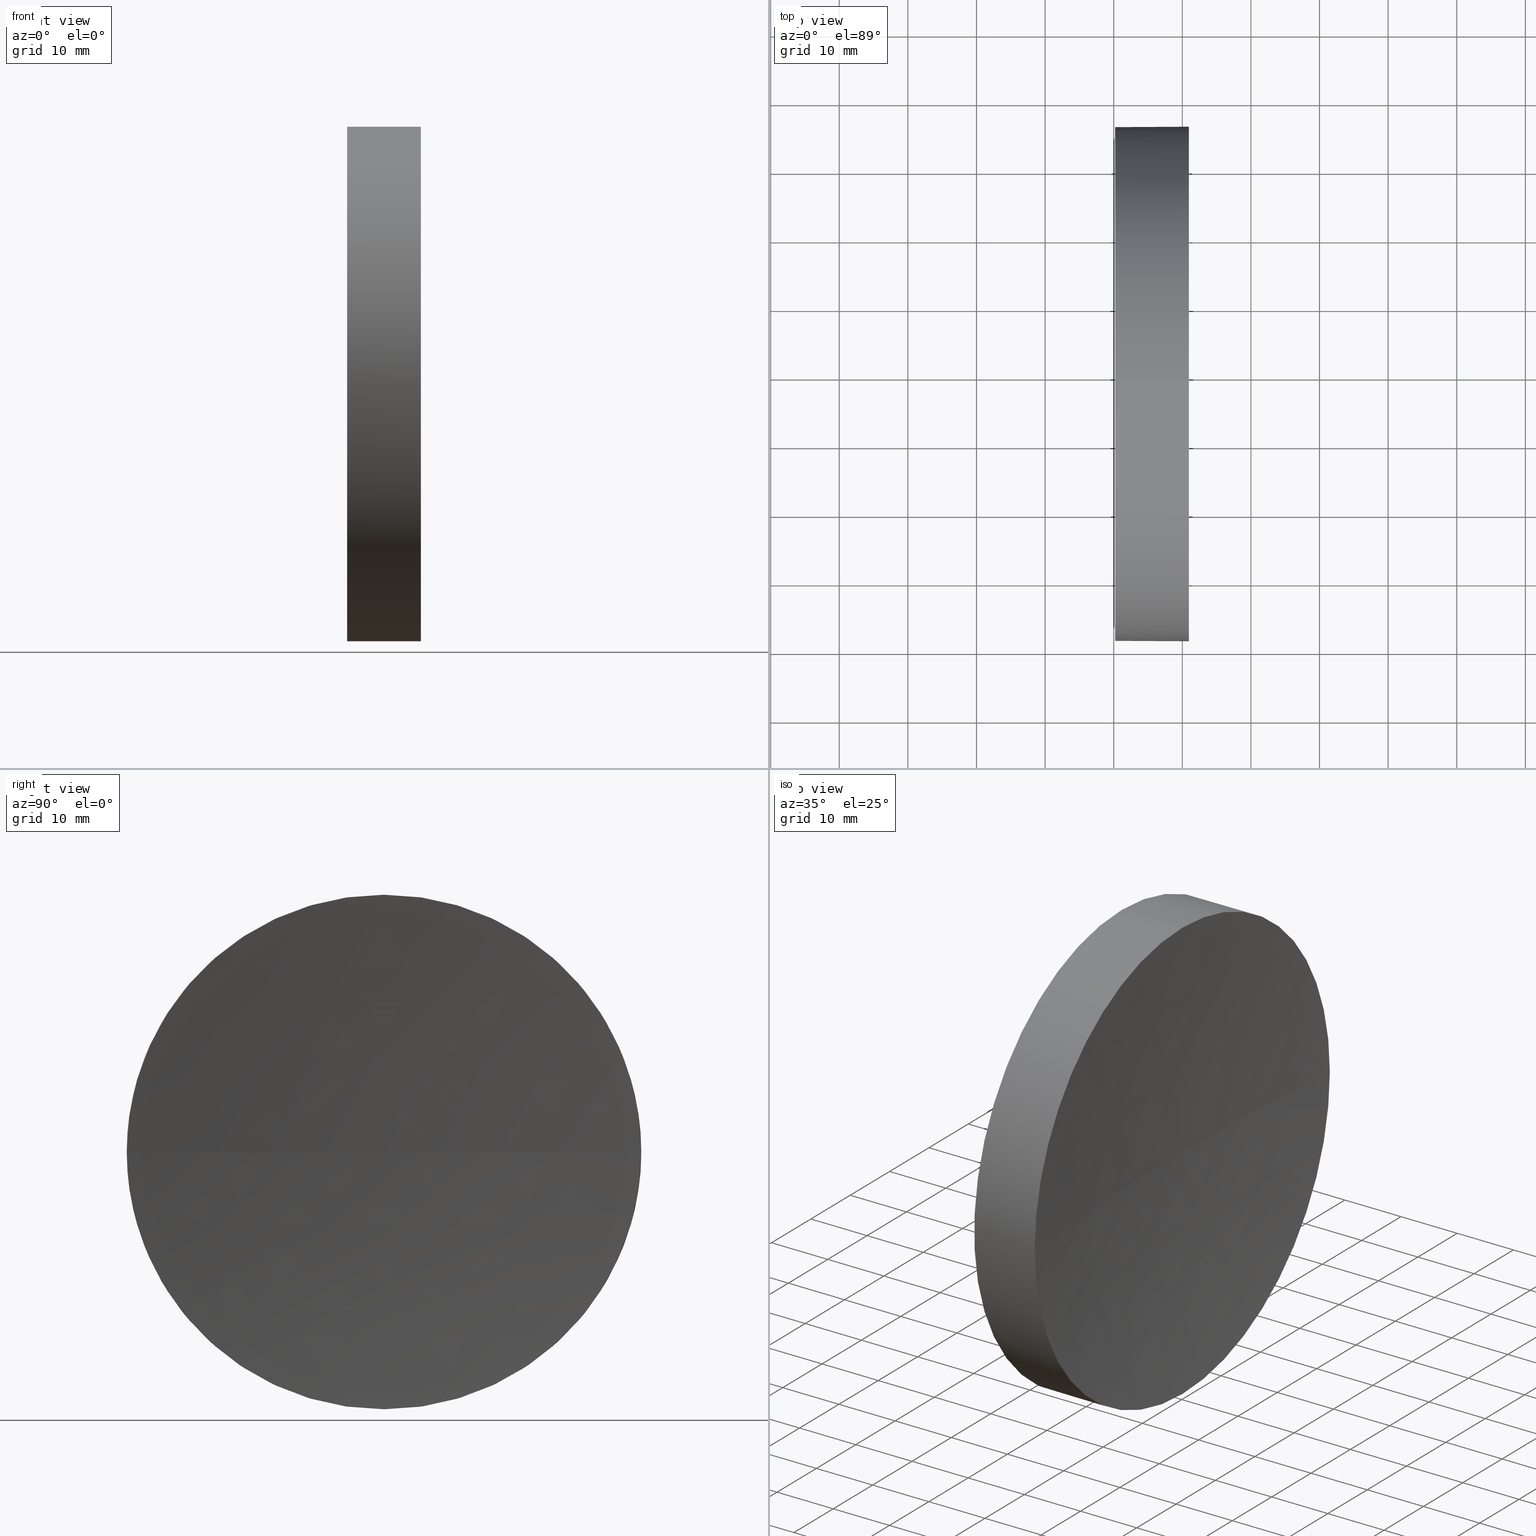
[diagram: canonical four-view strip — front | top / right | iso, engineering-drawing reading convention]
A machine part, canonical four-view strip (front | top / right | iso — engineering-drawing reading convention). The complete STEP part file that produces these views, byte-faithful:
ISO-10303-21;
HEADER;
FILE_DESCRIPTION (( 'STEP AP214' ),
    '1' );
FILE_NAME ('270061.STEP',
    '2019-07-23T08:44:29',
    ( '' ),
    ( '' ),
    'SwSTEP 2.0',
    'SolidWorks 2016',
    '' );
FILE_SCHEMA (( 'AUTOMOTIVE_DESIGN' ));
ENDSEC;

DATA;
#1 =( NAMED_UNIT ( * ) SI_UNIT ( $, .STERADIAN. ) SOLID_ANGLE_UNIT ( ) );
#2 = AXIS2_PLACEMENT_3D ( 'NONE', #132, #103, #11 ) ;
#3 = CIRCLE ( 'NONE', #118, 37.50000000000000700 ) ;
#4 = PRESENTATION_LAYER_ASSIGNMENT (  '', '', ( #39 ) ) ;
#5 = VERTEX_POINT ( 'NONE', #6 ) ;
#6 = CARTESIAN_POINT ( 'NONE',  ( 239.1996119002084500, 138.7560422467451000, 0.0000000000000000000 ) ) ;
#7 = PRODUCT_DEFINITION_SHAPE ( 'NONE', 'NONE',  #174 ) ;
#8 = UNCERTAINTY_MEASURE_WITH_UNIT (LENGTH_MEASURE( 1.000000000000000100E-005 ), #36, 'distance_accuracy_value', 'NONE');
#9 = ORIENTED_EDGE ( 'NONE', *, *, #31, .F. ) ;
#10 = AXIS2_PLACEMENT_3D ( 'NONE', #80, #78, #130 ) ;
#11 = DIRECTION ( 'NONE',  ( 0.0000000000000000000, 0.0000000000000000000, 1.000000000000000000 ) ) ;
#12 = DIRECTION ( 'NONE',  ( 0.0000000000000000000, 0.0000000000000000000, 1.000000000000000000 ) ) ;
#13 = SURFACE_STYLE_USAGE ( .BOTH. , #71 ) ;
#14 = DIRECTION ( 'NONE',  ( 1.000000000000000000, 0.0000000000000000000, 0.0000000000000000000 ) ) ;
#15 = EDGE_CURVE ( 'NONE', #20, #163, #88, .T. ) ;
#16 = UNCERTAINTY_MEASURE_WITH_UNIT (LENGTH_MEASURE( 1.000000000000000100E-005 ), #165, 'distance_accuracy_value', 'NONE');
#17 = AXIS2_PLACEMENT_3D ( 'NONE', #157, #63, #21 ) ;
#18 = CIRCLE ( 'NONE', #172, 37.50000000000000700 ) ;
#19 = SURFACE_STYLE_USAGE ( .BOTH. , #125 ) ;
#20 = VERTEX_POINT ( 'NONE', #37 ) ;
#21 = DIRECTION ( 'NONE',  ( 0.0000000000000000000, 0.0000000000000000000, 1.000000000000000000 ) ) ;
#22 = CARTESIAN_POINT ( 'NONE',  ( 240.9613038483586300, 138.7560422467448700, 37.50000000000000700 ) ) ;
#23 = EDGE_LOOP ( 'NONE', ( #150, #57 ) ) ;
#24 = EDGE_CURVE ( 'NONE', #34, #156, #134, .T. ) ;
#25 = DIRECTION ( 'NONE',  ( 0.0000000000000000000, 0.0000000000000000000, 1.000000000000000000 ) ) ;
#26 = ORIENTED_EDGE ( 'NONE', *, *, #146, .T. ) ;
#27 =( NAMED_UNIT ( * ) SI_UNIT ( $, .STERADIAN. ) SOLID_ANGLE_UNIT ( ) );
#28 =( GEOMETRIC_REPRESENTATION_CONTEXT ( 3 ) GLOBAL_UNCERTAINTY_ASSIGNED_CONTEXT ( ( #8 ) ) GLOBAL_UNIT_ASSIGNED_CONTEXT ( ( #36, #50, #142 ) ) REPRESENTATION_CONTEXT ( 'NONE', 'WORKASPACE' ) );
#29 = FACE_OUTER_BOUND ( 'NONE', #101, .T. ) ;
#30 = LINE ( 'NONE', #113, #138 ) ;
#31 = EDGE_CURVE ( 'NONE', #34, #20, #111, .T. ) ;
#32 = ADVANCED_BREP_SHAPE_REPRESENTATION ( '270061', ( #51, #158 ), #151 ) ;
#33 = SURFACE_STYLE_FILL_AREA ( #176 ) ;
#34 = VERTEX_POINT ( 'NONE', #22 ) ;
#35 = PRODUCT_DEFINITION_FORMATION_WITH_SPECIFIED_SOURCE ( '�κ�', '', #136, .NOT_KNOWN. ) ;
#36 =( LENGTH_UNIT ( ) NAMED_UNIT ( * ) SI_UNIT ( .MILLI., .METRE. ) );
#37 = CARTESIAN_POINT ( 'NONE',  ( 240.9613038483586500, 176.2560422467447800, 4.592425496802536500E-015 ) ) ;
#38 = CARTESIAN_POINT ( 'NONE',  ( 639.1996119002084200, 138.7560422467451200, 0.0000000000000000000 ) ) ;
#39 = STYLED_ITEM ( 'NONE', ( #180 ), #32 ) ;
#40 = CARTESIAN_POINT ( 'NONE',  ( 639.1996119002084200, 138.7560422467451200, 0.0000000000000000000 ) ) ;
#41 = CARTESIAN_POINT ( 'NONE',  ( 230.1996119052661200, 138.7560422467448700, 0.0000000000000000000 ) ) ;
#42 = AXIS2_PLACEMENT_3D ( 'NONE', #159, #102, #12 ) ;
#43 = DIRECTION ( 'NONE',  ( 0.0000000000000000000, -1.000000000000000000, 0.0000000000000000000 ) ) ;
#44 = PRODUCT_DEFINITION_CONTEXT ( 'detailed design', #133, 'design' ) ;
#45 = ORIENTED_EDGE ( 'NONE', *, *, #85, .F. ) ;
#46 = FILL_AREA_STYLE ('',( #179 ) ) ;
#47 = APPLICATION_PROTOCOL_DEFINITION ( 'draft international standard', 'automotive_design', 1998, #133 ) ;
#48 = ORIENTED_EDGE ( 'NONE', *, *, #15, .F. ) ;
#49 =( GEOMETRIC_REPRESENTATION_CONTEXT ( 3 ) GLOBAL_UNCERTAINTY_ASSIGNED_CONTEXT ( ( #16 ) ) GLOBAL_UNIT_ASSIGNED_CONTEXT ( ( #165, #137, #27 ) ) REPRESENTATION_CONTEXT ( 'NONE', 'WORKASPACE' ) );
#50 =( NAMED_UNIT ( * ) PLANE_ANGLE_UNIT ( ) SI_UNIT ( $, .RADIAN. ) );
#51 = MANIFOLD_SOLID_BREP ( '��ת1', #175 ) ;
#52 = CARTESIAN_POINT ( 'NONE',  ( 217.9702860043302100, 138.7560422467448700, 37.50000000000000700 ) ) ;
#53 = COLOUR_RGB ( '',1.000000000000000000, 1.000000000000000000, 1.000000000000000000 ) ;
#54 = FILL_AREA_STYLE_COLOUR ( '', #53 ) ;
#55 = CARTESIAN_POINT ( 'NONE',  ( 230.1996119052661200, 138.7560422467448700, 37.50000000000000700 ) ) ;
#56 = DIRECTION ( 'NONE',  ( 0.0000000000000000000, 0.0000000000000000000, 1.000000000000000000 ) ) ;
#57 = ORIENTED_EDGE ( 'NONE', *, *, #185, .T. ) ;
#58 = CIRCLE ( 'NONE', #10, 400.0000000000000000 ) ;
#59 = VERTEX_POINT ( 'NONE', #77 ) ;
#60 = AXIS2_PLACEMENT_3D ( 'NONE', #41, #181, #25 ) ;
#61 = VERTEX_POINT ( 'NONE', #147 ) ;
#62 = ORIENTED_EDGE ( 'NONE', *, *, #15, .T. ) ;
#63 = DIRECTION ( 'NONE',  ( -1.000000000000000000, -0.0000000000000000000, -0.0000000000000000000 ) ) ;
#64 = DIRECTION ( 'NONE',  ( 0.0000000000000000000, 0.0000000000000000000, 1.000000000000000000 ) ) ;
#65 = CARTESIAN_POINT ( 'NONE',  ( 0.0000000000000000000, 0.0000000000000000000, 0.0000000000000000000 ) ) ;
#66 = DIRECTION ( 'NONE',  ( 0.0000000000000000000, -1.224646799147353200E-016, 1.000000000000000000 ) ) ;
#67 = AXIS2_PLACEMENT_3D ( 'NONE', #40, #93, #183 ) ;
#68 = ORIENTED_EDGE ( 'NONE', *, *, #90, .T. ) ;
#69 = DIRECTION ( 'NONE',  ( 0.0000000000000000000, 0.0000000000000000000, 1.000000000000000000 ) ) ;
#70 = ORIENTED_EDGE ( 'NONE', *, *, #185, .F. ) ;
#71 = SURFACE_SIDE_STYLE ('',( #121 ) ) ;
#72 = VECTOR ( 'NONE', #76, 1000.000000000000000 ) ;
#73 = PRODUCT_RELATED_PRODUCT_CATEGORY ( 'part', '', ( #136 ) ) ;
#74 = SPHERICAL_SURFACE ( 'NONE', #153, 400.0000000000000000 ) ;
#75 = SHAPE_DEFINITION_REPRESENTATION ( #7, #32 ) ;
#76 = DIRECTION ( 'NONE',  ( -1.000000000000000000, -0.0000000000000000000, -0.0000000000000000000 ) ) ;
#77 = CARTESIAN_POINT ( 'NONE',  ( 230.1996119052661200, 138.7560422467448700, -37.50000000000000700 ) ) ;
#78 = DIRECTION ( 'NONE',  ( 0.0000000000000000000, 0.0000000000000000000, -1.000000000000000000 ) ) ;
#79 = CARTESIAN_POINT ( 'NONE',  ( 240.9613038483586300, 138.7560422467448700, 0.0000000000000000000 ) ) ;
#80 = CARTESIAN_POINT ( 'NONE',  ( 639.1996119002084200, 138.7560422467451200, 0.0000000000000000000 ) ) ;
#81 = CARTESIAN_POINT ( 'NONE',  ( 240.9613038483586300, 138.7560422467448700, -37.50000000000000700 ) ) ;
#82 = CARTESIAN_POINT ( 'NONE',  ( 230.1996119052661200, 138.7560422467448700, 0.0000000000000000000 ) ) ;
#83 = EDGE_LOOP ( 'NONE', ( #48, #112, #168, #100 ) ) ;
#84 = APPLICATION_CONTEXT ( 'automotive_design' ) ;
#85 = EDGE_CURVE ( 'NONE', #163, #59, #30, .T. ) ;
#86 = CIRCLE ( 'NONE', #104, 37.50000000000000700 ) ;
#87 = AXIS2_PLACEMENT_3D ( 'NONE', #106, #164, #162 ) ;
#88 = CIRCLE ( 'NONE', #17, 37.50000000000000700 ) ;
#89 = FACE_OUTER_BOUND ( 'NONE', #83, .T. ) ;
#90 = EDGE_CURVE ( 'NONE', #61, #5, #58, .T. ) ;
#91 = AXIS2_PLACEMENT_3D ( 'NONE', #145, #122, #64 ) ;
#92 = SPHERICAL_SURFACE ( 'NONE', #67, 400.0000000000000000 ) ;
#93 = DIRECTION ( 'NONE',  ( 0.0000000000000000000, 0.0000000000000000000, 1.000000000000000000 ) ) ;
#94 = EDGE_CURVE ( 'NONE', #156, #59, #86, .T. ) ;
#95 = DIRECTION ( 'NONE',  ( -1.000000000000000000, -0.0000000000000000000, -0.0000000000000000000 ) ) ;
#96 = APPLICATION_PROTOCOL_DEFINITION ( 'draft international standard', 'automotive_design', 1998, #84 ) ;
#97 = FACE_OUTER_BOUND ( 'NONE', #23, .T. ) ;
#98 = ORIENTED_EDGE ( 'NONE', *, *, #110, .F. ) ;
#99 = STYLED_ITEM ( 'NONE', ( #173 ), #51 ) ;
#100 = ORIENTED_EDGE ( 'NONE', *, *, #146, .F. ) ;
#101 = EDGE_LOOP ( 'NONE', ( #45, #26, #171, #105, #70 ) ) ;
#102 = DIRECTION ( 'NONE',  ( -1.000000000000000000, -0.0000000000000000000, -0.0000000000000000000 ) ) ;
#103 = DIRECTION ( 'NONE',  ( -1.000000000000000000, -0.0000000000000000000, -0.0000000000000000000 ) ) ;
#104 = AXIS2_PLACEMENT_3D ( 'NONE', #82, #108, #69 ) ;
#105 = ORIENTED_EDGE ( 'NONE', *, *, #24, .T. ) ;
#106 = CARTESIAN_POINT ( 'NONE',  ( 230.1996119052661200, 138.7560422467448700, 0.0000000000000000000 ) ) ;
#107 = ADVANCED_FACE ( 'NONE', ( #149 ), #166, .T. ) ;
#108 = DIRECTION ( 'NONE',  ( -1.000000000000000000, -0.0000000000000000000, -0.0000000000000000000 ) ) ;
#109 = FACE_OUTER_BOUND ( 'NONE', #120, .T. ) ;
#110 = EDGE_CURVE ( 'NONE', #61, #34, #3, .T. ) ;
#111 = CIRCLE ( 'NONE', #91, 37.50000000000000700 ) ;
#112 = ORIENTED_EDGE ( 'NONE', *, *, #123, .T. ) ;
#113 = CARTESIAN_POINT ( 'NONE',  ( 217.9702860043302100, 138.7560422467448700, -37.50000000000000700 ) ) ;
#114 = DIRECTION ( 'NONE',  ( -1.000000000000000000, -0.0000000000000000000, -0.0000000000000000000 ) ) ;
#115 = CARTESIAN_POINT ( 'NONE',  ( 639.1996119002084200, 138.7560422467451200, 0.0000000000000000000 ) ) ;
#116 = DIRECTION ( 'NONE',  ( 0.0000000000000000000, 0.0000000000000000000, 1.000000000000000000 ) ) ;
#117 = DIRECTION ( 'NONE',  ( 0.0000000000000000000, 0.0000000000000000000, 1.000000000000000000 ) ) ;
#118 = AXIS2_PLACEMENT_3D ( 'NONE', #178, #114, #117 ) ;
#119 = UNCERTAINTY_MEASURE_WITH_UNIT (LENGTH_MEASURE( 1.000000000000000100E-005 ), #167, 'distance_accuracy_value', 'NONE');
#120 = EDGE_LOOP ( 'NONE', ( #144, #9, #98, #68 ) ) ;
#121 = SURFACE_STYLE_FILL_AREA ( #46 ) ;
#122 = DIRECTION ( 'NONE',  ( -1.000000000000000000, -0.0000000000000000000, -0.0000000000000000000 ) ) ;
#123 = EDGE_CURVE ( 'NONE', #20, #5, #143, .T. ) ;
#124 = ADVANCED_FACE ( 'NONE', ( #89 ), #74, .F. ) ;
#125 = SURFACE_SIDE_STYLE ('',( #33 ) ) ;
#126 = ADVANCED_FACE ( 'NONE', ( #29 ), #184, .T. ) ;
#127 = CIRCLE ( 'NONE', #60, 37.50000000000000700 ) ;
#128 = ADVANCED_FACE ( 'NONE', ( #97 ), #160, .F. ) ;
#129 = DIRECTION ( 'NONE',  ( -1.000000000000000000, -0.0000000000000000000, -0.0000000000000000000 ) ) ;
#130 = DIRECTION ( 'NONE',  ( -1.000000000000000000, 0.0000000000000000000, 0.0000000000000000000 ) ) ;
#131 = AXIS2_PLACEMENT_3D ( 'NONE', #115, #66, #161 ) ;
#132 = CARTESIAN_POINT ( 'NONE',  ( 217.9702860043302100, 138.7560422467448700, 0.0000000000000000000 ) ) ;
#133 = APPLICATION_CONTEXT ( 'automotive_design' ) ;
#134 = LINE ( 'NONE', #52, #72 ) ;
#135 = DIRECTION ( 'NONE',  ( 0.0000000000000000000, 0.0000000000000000000, 1.000000000000000000 ) ) ;
#136 = PRODUCT ( '270061', '270061', '', ( #186 ) ) ;
#137 =( NAMED_UNIT ( * ) PLANE_ANGLE_UNIT ( ) SI_UNIT ( $, .RADIAN. ) );
#138 = VECTOR ( 'NONE', #95, 1000.000000000000000 ) ;
#139 = ORIENTED_EDGE ( 'NONE', *, *, #24, .F. ) ;
#140 = MECHANICAL_DESIGN_GEOMETRIC_PRESENTATION_REPRESENTATION (  '', ( #39 ), #49 ) ;
#141 = ORIENTED_EDGE ( 'NONE', *, *, #31, .T. ) ;
#142 =( NAMED_UNIT ( * ) SI_UNIT ( $, .STERADIAN. ) SOLID_ANGLE_UNIT ( ) );
#143 = CIRCLE ( 'NONE', #131, 400.0000000000000000 ) ;
#144 = ORIENTED_EDGE ( 'NONE', *, *, #123, .F. ) ;
#145 = CARTESIAN_POINT ( 'NONE',  ( 240.9613038483586300, 138.7560422467448700, 0.0000000000000000000 ) ) ;
#146 = EDGE_CURVE ( 'NONE', #163, #61, #18, .T. ) ;
#147 = CARTESIAN_POINT ( 'NONE',  ( 240.9613038483586500, 101.2560422467452000, 0.0000000000000000000 ) ) ;
#148 = PRESENTATION_LAYER_ASSIGNMENT (  '', '', ( #99 ) ) ;
#149 = FACE_OUTER_BOUND ( 'NONE', #182, .T. ) ;
#150 = ORIENTED_EDGE ( 'NONE', *, *, #94, .T. ) ;
#151 =( GEOMETRIC_REPRESENTATION_CONTEXT ( 3 ) GLOBAL_UNCERTAINTY_ASSIGNED_CONTEXT ( ( #119 ) ) GLOBAL_UNIT_ASSIGNED_CONTEXT ( ( #167, #169, #1 ) ) REPRESENTATION_CONTEXT ( 'NONE', 'WORKASPACE' ) );
#152 = COLOUR_RGB ( '',1.000000000000000000, 1.000000000000000000, 1.000000000000000000 ) ;
#153 = AXIS2_PLACEMENT_3D ( 'NONE', #38, #116, #43 ) ;
#154 = ORIENTED_EDGE ( 'NONE', *, *, #94, .F. ) ;
#155 = MECHANICAL_DESIGN_GEOMETRIC_PRESENTATION_REPRESENTATION (  '', ( #99 ), #28 ) ;
#156 = VERTEX_POINT ( 'NONE', #55 ) ;
#157 = CARTESIAN_POINT ( 'NONE',  ( 240.9613038483586300, 138.7560422467448700, 0.0000000000000000000 ) ) ;
#158 = AXIS2_PLACEMENT_3D ( 'NONE', #65, #135, #14 ) ;
#159 = CARTESIAN_POINT ( 'NONE',  ( 217.9702860043302100, 138.7560422467448700, 0.0000000000000000000 ) ) ;
#160 = PLANE ( 'NONE',  #87 ) ;
#161 = DIRECTION ( 'NONE',  ( 0.0000000000000000000, -1.000000000000000000, -1.224646799147353200E-016 ) ) ;
#162 = DIRECTION ( 'NONE',  ( 0.0000000000000000000, 0.0000000000000000000, -1.000000000000000000 ) ) ;
#163 = VERTEX_POINT ( 'NONE', #81 ) ;
#164 = DIRECTION ( 'NONE',  ( 1.000000000000000000, 0.0000000000000000000, 0.0000000000000000000 ) ) ;
#165 =( LENGTH_UNIT ( ) NAMED_UNIT ( * ) SI_UNIT ( .MILLI., .METRE. ) );
#166 = CYLINDRICAL_SURFACE ( 'NONE', #42, 37.50000000000000700 ) ;
#167 =( LENGTH_UNIT ( ) NAMED_UNIT ( * ) SI_UNIT ( .MILLI., .METRE. ) );
#168 = ORIENTED_EDGE ( 'NONE', *, *, #90, .F. ) ;
#169 =( NAMED_UNIT ( * ) PLANE_ANGLE_UNIT ( ) SI_UNIT ( $, .RADIAN. ) );
#170 = ORIENTED_EDGE ( 'NONE', *, *, #85, .T. ) ;
#171 = ORIENTED_EDGE ( 'NONE', *, *, #110, .T. ) ;
#172 = AXIS2_PLACEMENT_3D ( 'NONE', #79, #129, #56 ) ;
#173 = PRESENTATION_STYLE_ASSIGNMENT (( #19 ) ) ;
#174 = PRODUCT_DEFINITION ( 'δ֪', '', #35, #44 ) ;
#175 = CLOSED_SHELL ( 'NONE', ( #107, #124, #177, #126, #128 ) ) ;
#176 = FILL_AREA_STYLE ('',( #54 ) ) ;
#177 = ADVANCED_FACE ( 'NONE', ( #109 ), #92, .F. ) ;
#178 = CARTESIAN_POINT ( 'NONE',  ( 240.9613038483586300, 138.7560422467448700, 0.0000000000000000000 ) ) ;
#179 = FILL_AREA_STYLE_COLOUR ( '', #152 ) ;
#180 = PRESENTATION_STYLE_ASSIGNMENT (( #13 ) ) ;
#181 = DIRECTION ( 'NONE',  ( -1.000000000000000000, -0.0000000000000000000, -0.0000000000000000000 ) ) ;
#182 = EDGE_LOOP ( 'NONE', ( #62, #170, #154, #139, #141 ) ) ;
#183 = DIRECTION ( 'NONE',  ( 0.0000000000000000000, -1.000000000000000000, 0.0000000000000000000 ) ) ;
#184 = CYLINDRICAL_SURFACE ( 'NONE', #2, 37.50000000000000700 ) ;
#185 = EDGE_CURVE ( 'NONE', #59, #156, #127, .T. ) ;
#186 = PRODUCT_CONTEXT ( 'NONE', #84, 'mechanical' ) ;
ENDSEC;
END-ISO-10303-21;
